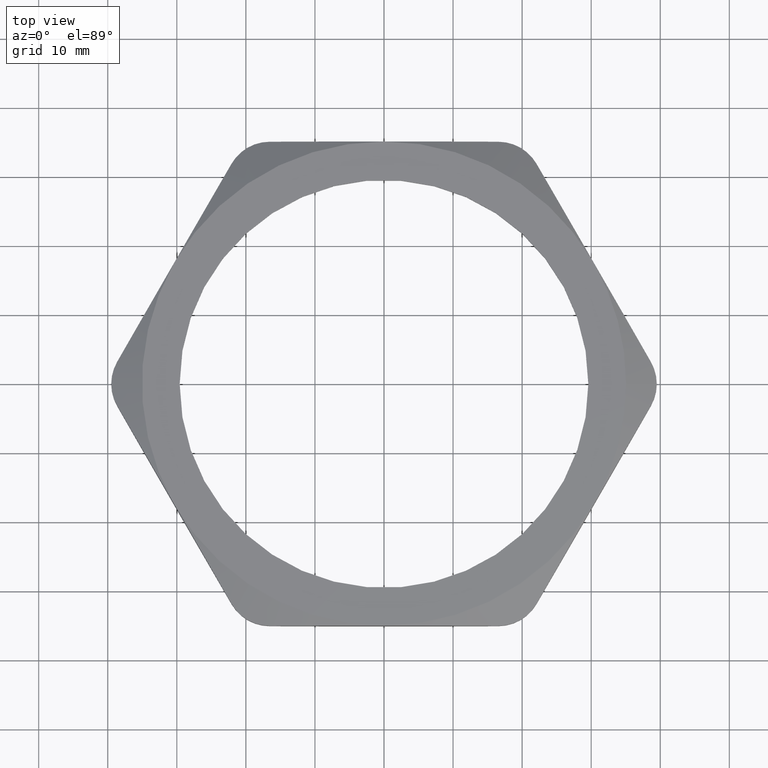
[diagram: clean part render]
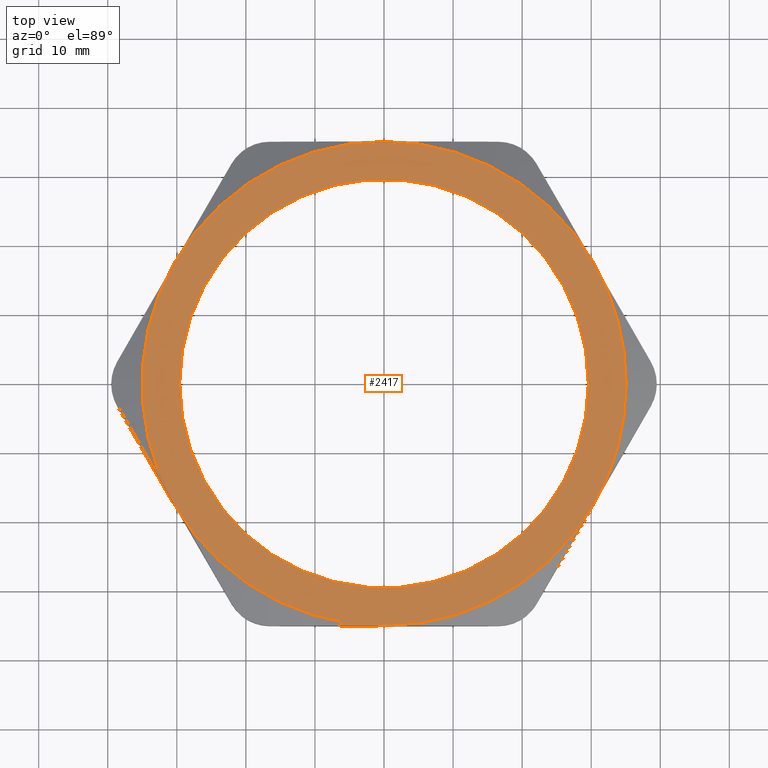
[diagram: same view with one face highlighted and labeled with its STEP entity id]
A machine part, top view. The second image highlights one B-rep face of the part: STEP entity #2417.
In plain terms, the highlighted planar face has unit normal (0, 0, -1).
Its self-contained STEP definition (entity closure, byte-faithful):
#308 = CARTESIAN_POINT ( 'NONE',  ( 1.195115057222525300, 0.6899999999999998400, 0.3100000000000000000 ) ) ;
#309 = CARTESIAN_POINT ( 'NONE',  ( 1.380000000000000100, 0.0000000000000000000, 0.3100000000000000000 ) ) ;
#310 = DIRECTION ( 'NONE',  ( 1.000000000000000000, 0.0000000000000000000, 0.0000000000000000000 ) ) ;
#311 = DIRECTION ( 'NONE',  ( 0.0000000000000000000, 0.0000000000000000000, 1.000000000000000000 ) ) ;
#312 = CARTESIAN_POINT ( 'NONE',  ( 0.0000000000000000000, 0.0000000000000000000, 0.3100000000000000000 ) ) ;
#313 = AXIS2_PLACEMENT_3D ( 'NONE', #312, #311, #310 ) ;
#314 = CIRCLE ( 'NONE', #313, 1.380000000000000100 ) ;
#682 = DIRECTION ( 'NONE',  ( 1.000000000000000000, 0.0000000000000000000, 0.0000000000000000000 ) ) ;
#683 = DIRECTION ( 'NONE',  ( 0.0000000000000000000, 0.0000000000000000000, 1.000000000000000000 ) ) ;
#684 = AXIS2_PLACEMENT_3D ( 'NONE', #689, #683, #682 ) ;
#685 = CIRCLE ( 'NONE', #684, 1.380000000000000100 ) ;
#689 = CARTESIAN_POINT ( 'NONE',  ( 0.0000000000000000000, 0.0000000000000000000, 0.3100000000000000000 ) ) ;
#795 = CARTESIAN_POINT ( 'NONE',  ( 1.195115057222524600, -0.6899999999999997200, 0.3100000000000000000 ) ) ;
#874 = DIRECTION ( 'NONE',  ( -1.000000000000000000, 0.0000000000000000000, 0.0000000000000000000 ) ) ;
#875 = DIRECTION ( 'NONE',  ( 0.0000000000000000000, 0.0000000000000000000, -1.000000000000000000 ) ) ;
#876 = CARTESIAN_POINT ( 'NONE',  ( 5.463695987328526400E-016, 2.759999999999999300, 0.3100000000000000000 ) ) ;
#877 = AXIS2_PLACEMENT_3D ( 'NONE', #876, #875, #874 ) ;
#878 = CARTESIAN_POINT ( 'NONE',  ( 0.0000000000000000000, 0.0000000000000000000, 0.3100000000000000000 ) ) ;
#889 = PLANE ( 'NONE',  #877 ) ;
#890 = FACE_OUTER_BOUND ( 'NONE', #2434, .T. ) ;
#893 = FACE_BOUND ( 'NONE', #2418, .T. ) ;
#894 = CARTESIAN_POINT ( 'NONE',  ( 0.0000000000000000000, 1.380000000000000100, 0.3100000000000000000 ) ) ;
#922 = DIRECTION ( 'NONE',  ( 1.000000000000000000, 0.0000000000000000000, 0.0000000000000000000 ) ) ;
#923 = DIRECTION ( 'NONE',  ( 0.0000000000000000000, 0.0000000000000000000, 1.000000000000000000 ) ) ;
#924 = CARTESIAN_POINT ( 'NONE',  ( 0.0000000000000000000, 0.0000000000000000000, 0.3100000000000000000 ) ) ;
#925 = AXIS2_PLACEMENT_3D ( 'NONE', #924, #923, #922 ) ;
#926 = CIRCLE ( 'NONE', #925, 1.380000000000000100 ) ;
#927 = DIRECTION ( 'NONE',  ( 1.000000000000000000, 0.0000000000000000000, 0.0000000000000000000 ) ) ;
#928 = DIRECTION ( 'NONE',  ( 0.0000000000000000000, 0.0000000000000000000, 1.000000000000000000 ) ) ;
#929 = CARTESIAN_POINT ( 'NONE',  ( 0.0000000000000000000, 0.0000000000000000000, 0.3100000000000000000 ) ) ;
#930 = AXIS2_PLACEMENT_3D ( 'NONE', #929, #928, #927 ) ;
#931 = CIRCLE ( 'NONE', #930, 1.380000000000000100 ) ;
#932 = DIRECTION ( 'NONE',  ( 1.000000000000000000, 0.0000000000000000000, 0.0000000000000000000 ) ) ;
#933 = DIRECTION ( 'NONE',  ( 0.0000000000000000000, 0.0000000000000000000, 1.000000000000000000 ) ) ;
#934 = AXIS2_PLACEMENT_3D ( 'NONE', #878, #933, #932 ) ;
#935 = CIRCLE ( 'NONE', #934, 1.165000000000000000 ) ;
#961 = DIRECTION ( 'NONE',  ( 1.000000000000000000, 0.0000000000000000000, 0.0000000000000000000 ) ) ;
#962 = DIRECTION ( 'NONE',  ( 0.0000000000000000000, 0.0000000000000000000, 1.000000000000000000 ) ) ;
#963 = CARTESIAN_POINT ( 'NONE',  ( 0.0000000000000000000, 0.0000000000000000000, 0.3100000000000000000 ) ) ;
#964 = AXIS2_PLACEMENT_3D ( 'NONE', #963, #962, #961 ) ;
#965 = CIRCLE ( 'NONE', #964, 1.380000000000000100 ) ;
#1060 = CARTESIAN_POINT ( 'NONE',  ( 2.365849761790801000E-016, -1.379999999999999200, 0.3100000000000000000 ) ) ;
#1071 = CARTESIAN_POINT ( 'NONE',  ( -1.195115057222525800, -0.6899999999999995000, 0.3100000000000000000 ) ) ;
#1086 = CARTESIAN_POINT ( 'NONE',  ( -1.195115057222525300, 0.6900000000000001700, 0.3100000000000000000 ) ) ;
#1181 = DIRECTION ( 'NONE',  ( 1.000000000000000000, 0.0000000000000000000, 0.0000000000000000000 ) ) ;
#1182 = DIRECTION ( 'NONE',  ( 0.0000000000000000000, 0.0000000000000000000, 1.000000000000000000 ) ) ;
#1183 = CARTESIAN_POINT ( 'NONE',  ( 0.0000000000000000000, 0.0000000000000000000, 0.3100000000000000000 ) ) ;
#1184 = AXIS2_PLACEMENT_3D ( 'NONE', #1183, #1182, #1181 ) ;
#1189 = CIRCLE ( 'NONE', #1184, 1.380000000000000100 ) ;
#1191 = DIRECTION ( 'NONE',  ( 1.000000000000000000, 0.0000000000000000000, 0.0000000000000000000 ) ) ;
#1201 = DIRECTION ( 'NONE',  ( 0.0000000000000000000, 0.0000000000000000000, 1.000000000000000000 ) ) ;
#1202 = CARTESIAN_POINT ( 'NONE',  ( 0.0000000000000000000, 0.0000000000000000000, 0.3100000000000000000 ) ) ;
#1203 = AXIS2_PLACEMENT_3D ( 'NONE', #1202, #1201, #1191 ) ;
#1204 = CIRCLE ( 'NONE', #1203, 1.380000000000000100 ) ;
#1900 = CARTESIAN_POINT ( 'NONE',  ( -1.165000000000000000, 0.0000000000000000000, 0.3100000000000000000 ) ) ;
#1901 = DIRECTION ( 'NONE',  ( 1.000000000000000000, 0.0000000000000000000, 0.0000000000000000000 ) ) ;
#1902 = DIRECTION ( 'NONE',  ( 0.0000000000000000000, 0.0000000000000000000, 1.000000000000000000 ) ) ;
#1903 = AXIS2_PLACEMENT_3D ( 'NONE', #1909, #1902, #1901 ) ;
#1904 = CIRCLE ( 'NONE', #1903, 1.165000000000000000 ) ;
#1909 = CARTESIAN_POINT ( 'NONE',  ( 0.0000000000000000000, 0.0000000000000000000, 0.3100000000000000000 ) ) ;
#1942 = CARTESIAN_POINT ( 'NONE',  ( 1.165000000000000000, 1.438959988998140200E-016, 0.3100000000000000000 ) ) ;
#2127 = EDGE_CURVE ( 'NONE', #2128, #2129, #314, .T. ) ;
#2128 = VERTEX_POINT ( 'NONE', #309 ) ;
#2129 = VERTEX_POINT ( 'NONE', #308 ) ;
#2282 = ORIENTED_EDGE ( 'NONE', *, *, #2322, .T. ) ;
#2322 = EDGE_CURVE ( 'NONE', #2495, #2375, #685, .T. ) ;
#2375 = VERTEX_POINT ( 'NONE', #795 ) ;
#2413 = VERTEX_POINT ( 'NONE', #894 ) ;
#2417 = ADVANCED_FACE ( 'NONE', ( #893, #890 ), #889, .F. ) ;
#2418 = EDGE_LOOP ( 'NONE', ( #2419, #2420 ) ) ;
#2419 = ORIENTED_EDGE ( 'NONE', *, *, #2938, .F. ) ;
#2420 = ORIENTED_EDGE ( 'NONE', *, *, #2421, .F. ) ;
#2421 = EDGE_CURVE ( 'NONE', #2950, #2940, #935, .T. ) ;
#2424 = EDGE_CURVE ( 'NONE', #2507, #2492, #931, .T. ) ;
#2425 = ORIENTED_EDGE ( 'NONE', *, *, #2426, .T. ) ;
#2426 = EDGE_CURVE ( 'NONE', #2492, #2495, #926, .T. ) ;
#2434 = EDGE_LOOP ( 'NONE', ( #2435, #2437, #2425, #2282, #2535, #2531, #2525 ) ) ;
#2435 = ORIENTED_EDGE ( 'NONE', *, *, #2436, .T. ) ;
#2436 = EDGE_CURVE ( 'NONE', #2413, #2507, #965, .T. ) ;
#2437 = ORIENTED_EDGE ( 'NONE', *, *, #2424, .T. ) ;
#2492 = VERTEX_POINT ( 'NONE', #1071 ) ;
#2495 = VERTEX_POINT ( 'NONE', #1060 ) ;
#2507 = VERTEX_POINT ( 'NONE', #1086 ) ;
#2525 = ORIENTED_EDGE ( 'NONE', *, *, #2527, .T. ) ;
#2527 = EDGE_CURVE ( 'NONE', #2129, #2413, #1204, .T. ) ;
#2529 = EDGE_CURVE ( 'NONE', #2375, #2128, #1189, .T. ) ;
#2531 = ORIENTED_EDGE ( 'NONE', *, *, #2127, .T. ) ;
#2535 = ORIENTED_EDGE ( 'NONE', *, *, #2529, .T. ) ;
#2938 = EDGE_CURVE ( 'NONE', #2940, #2950, #1904, .T. ) ;
#2940 = VERTEX_POINT ( 'NONE', #1900 ) ;
#2950 = VERTEX_POINT ( 'NONE', #1942 ) ;